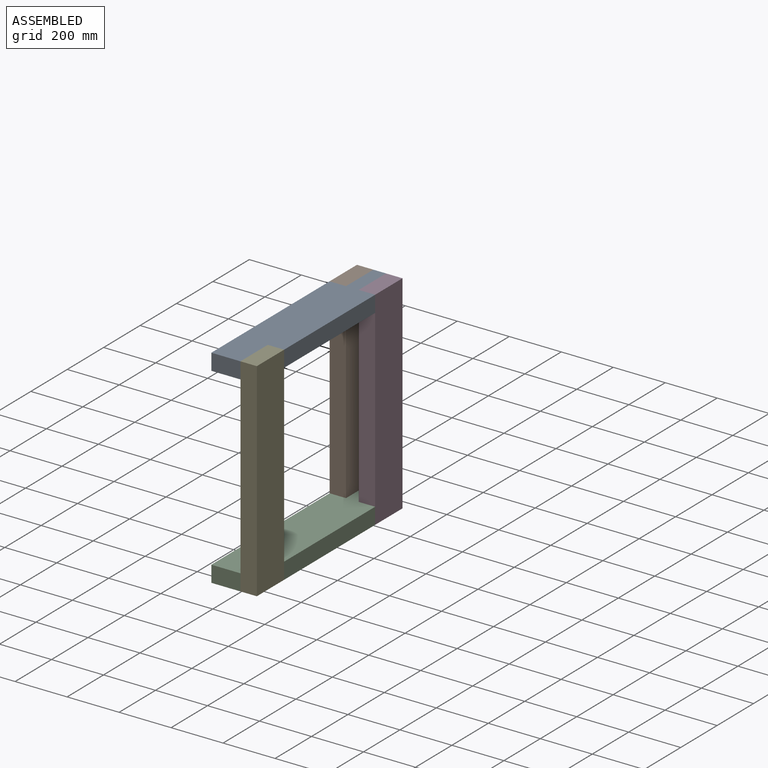
[diagram: assembled view]
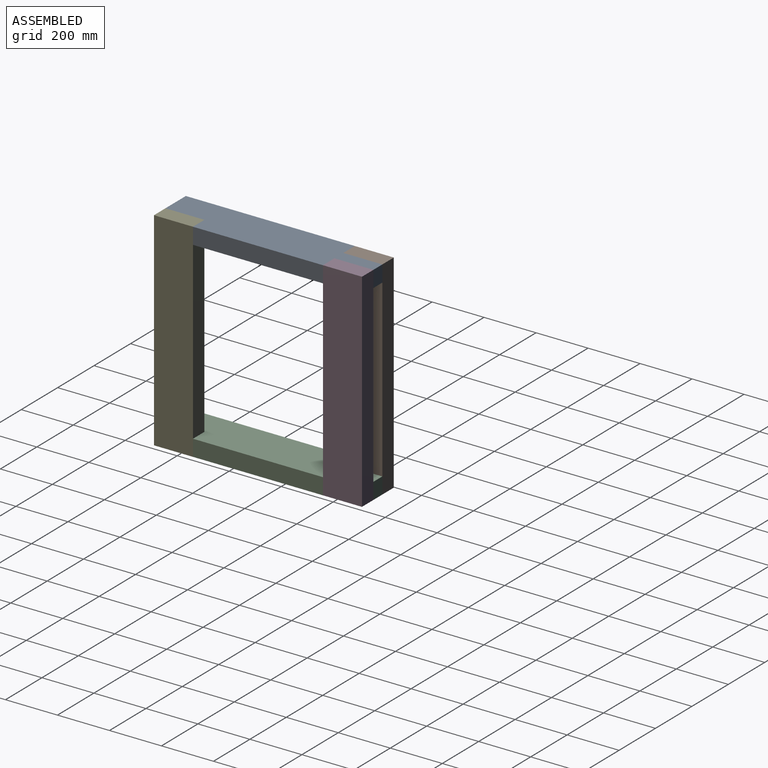
[diagram: assembled view, second angle]
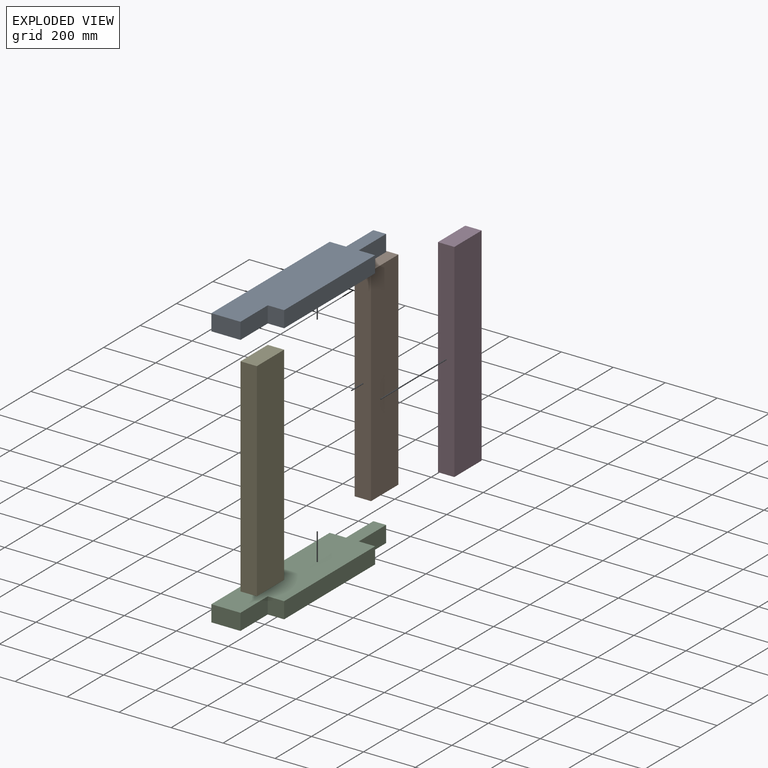
[diagram: exploded view]
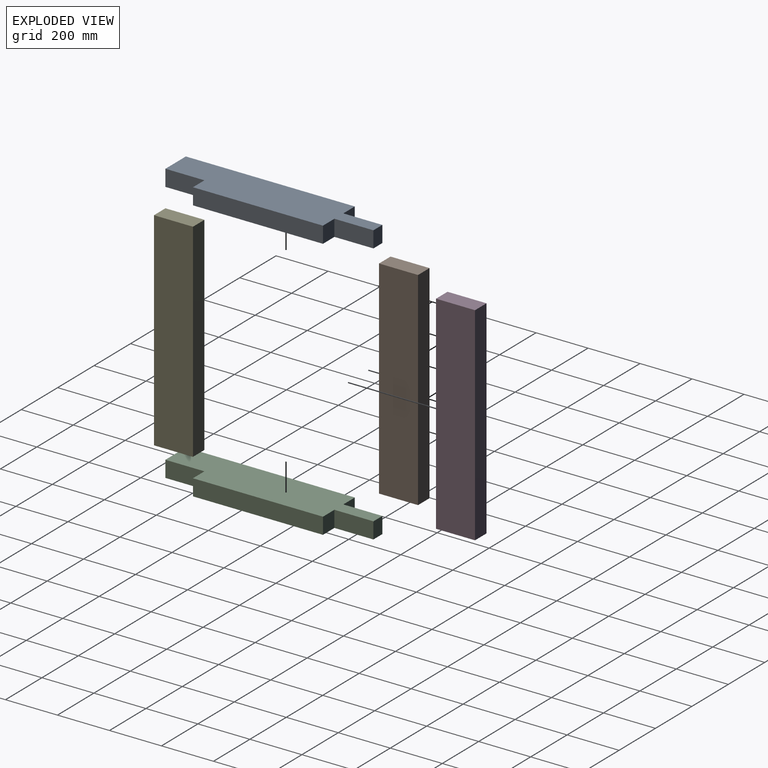
[diagram: exploded view, second angle]
ASSEMBLY  parts=5 mates=4
PART A: 12 faces, bbox 175x800x63 mm
  f0: plane 500x63mm, normal (1,0,0), area 31500mm2, adj f1,f4,f7,f11
  f1: plane 800x175mm, normal (0,0,1), area 111650mm2, adj f0,f2,f3,f5,f6,f7,f8,f9
  f2: plane 63x49mm, normal (0,1,0), area 3087mm2, adj f1,f4,f6,f8
  f3: plane 112x63mm, normal (0,-1,0), area 7056mm2, adj f1,f4,f5,f10
  f4: plane 800x175mm, normal (0,0,-1), area 111650mm2, adj f0,f2,f3,f5,f6,f7,f8,f9
  f5: plane 650x63mm, normal (-1,0,0), area 40950mm2, adj f1,f3,f4,f9
  f6: plane 150x63mm, normal (1,0,0), area 9450mm2, adj f1,f2,f4,f7
  f7: plane 63x63mm, normal (0,1,0), area 3969mm2, adj f0,f1,f4,f6
  f8: plane 150x63mm, normal (-1,0,0), area 9450mm2, adj f1,f2,f4,f9
  f9: plane 63x63mm, normal (0,1,0), area 3969mm2, adj f1,f4,f5,f8
  f10: plane 150x63mm, normal (1,0,0), area 9450mm2, adj f1,f3,f4,f11
  f11: plane 63x63mm, normal (0,-1,0), area 3969mm2, adj f0,f1,f4,f10
PART B: 6 faces, bbox 150x800x63 mm
  f0: plane 800x150mm, normal (0,0,-1), area 120000mm2, adj f1,f3,f4,f5
  f1: plane 800x63mm, normal (1,0,0), area 50400mm2, adj f0,f2,f4,f5
  f2: plane 800x150mm, normal (0,0,1), area 120000mm2, adj f1,f3,f4,f5
  f3: plane 800x63mm, normal (-1,0,0), area 50400mm2, adj f0,f2,f4,f5
  f4: plane 150x63mm, normal (0,1,0), area 9450mm2, adj f0,f1,f2,f3
  f5: plane 150x63mm, normal (0,-1,0), area 9450mm2, adj f0,f1,f2,f3
PART C: same geometry as A
PART D: same geometry as B
PART E: same geometry as B
PLACE A rot(axis=(0,0,-1),0deg) t=(-437.78,-314.31,176.77)mm fixed
PLACE B rot(axis=(-0.58,0.58,-0.58),120deg) t=(-493.78,15.33,208.27)mm
PLACE C rot(axis=(1,0,0),0deg) t=(-437.78,-314.31,-560.23)mm
PLACE D rot(axis=(0.58,-0.58,-0.58),120deg) t=(-381.78,15.33,-591.73)mm
PLACE E rot(axis=(0.58,0.58,0.58),120deg) t=(-381.78,156.05,-591.73)mm
MATE fastened A.f7 <-> D.f1  axis (0,1,0) through (-413.28,335.69,208.27)mm
MATE fastened E.f1 <-> A.f11  axis (0,1,0) through (-350.28,-164.31,208.27)mm
MATE fastened C.f9 <-> B.f1  axis (0,1,0) through (-525.28,335.69,-591.73)mm
MATE fastened E.f1 <-> C.f11  axis (0,1,0) through (-350.28,-164.31,-591.73)mm
